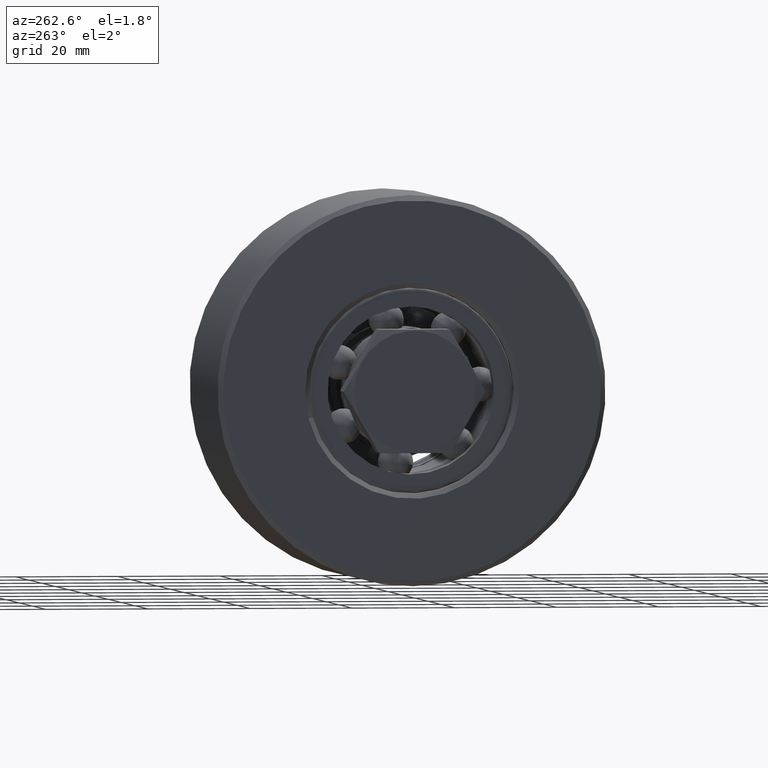
[diagram: clean part render]
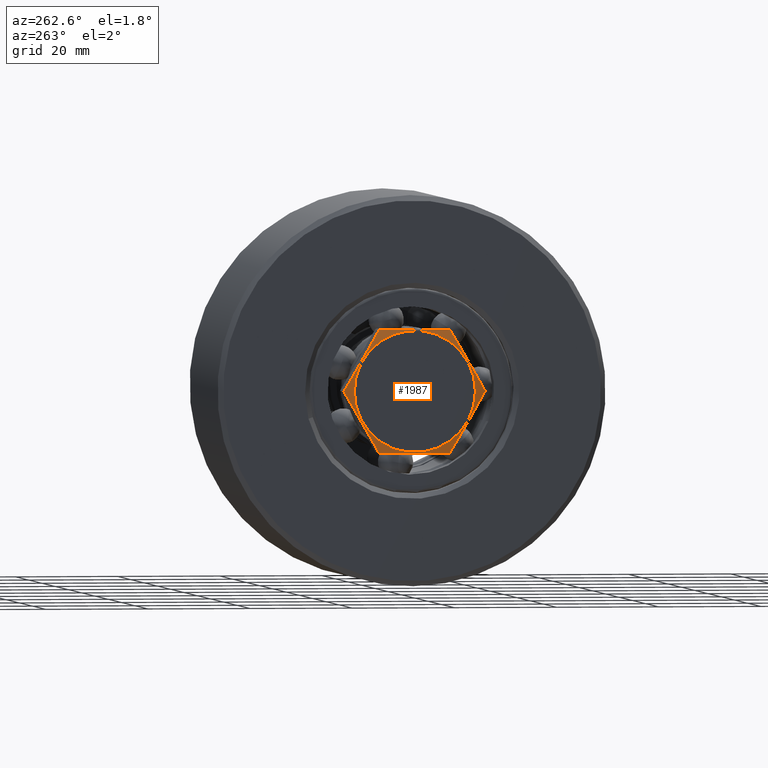
[diagram: same view with one face highlighted and labeled with its STEP entity id]
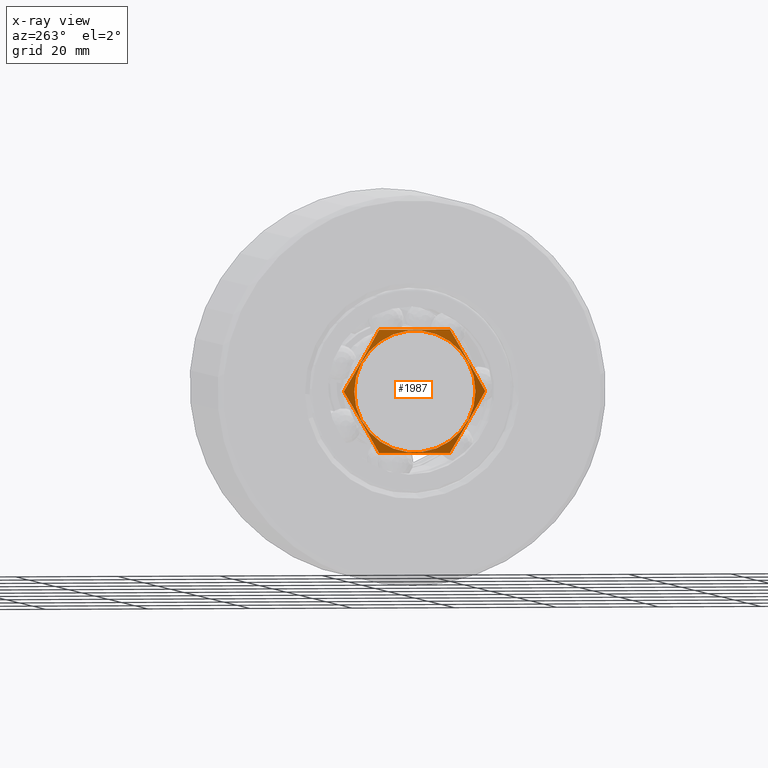
[diagram: x-ray of the same camera — body ghosted, the highlighted face saturated]
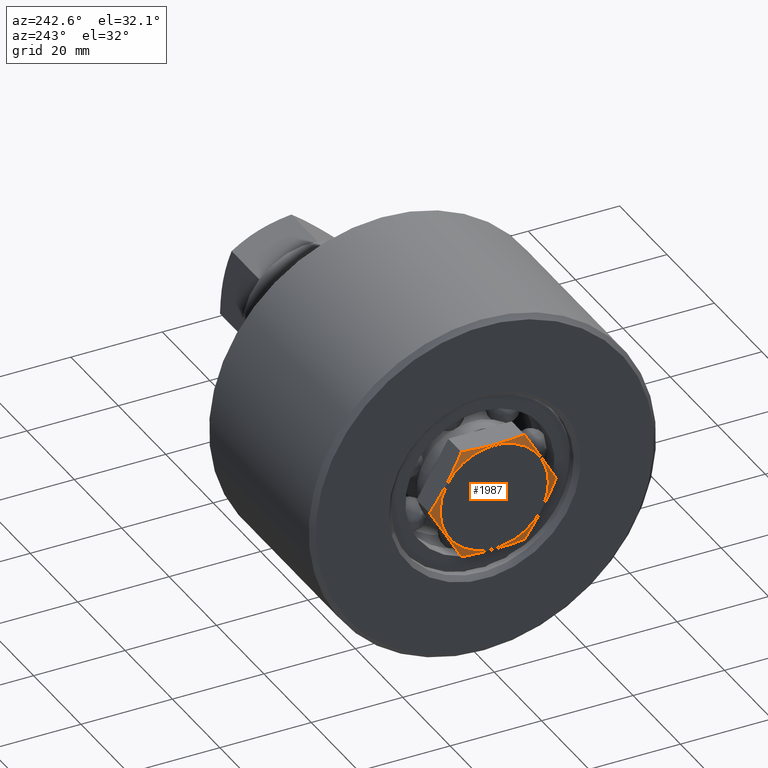
[diagram: same view with one face highlighted and labeled with its STEP entity id]
A machine part, auxiliary view. The second image highlights one B-rep face of the part: STEP entity #1987.
The next image is the same camera in x-ray: the body ghosted, the highlighted face saturated — about 0% of this face is hidden behind the body in this view.
A second angle (auxiliary view) of the same face is appended — the face is thin or edge-on in the first view.
In plain terms, the highlighted conical surface has half-angle 75 deg.
Its self-contained STEP definition (entity closure, byte-faithful):
#190=(
BOUNDED_CURVE()
B_SPLINE_CURVE(2,(#3143,#3144,#3145),.UNSPECIFIED.,.F.,.F.)
B_SPLINE_CURVE_WITH_KNOTS((3,3),(0.,1.38920738919512),.UNSPECIFIED.)
CURVE()
GEOMETRIC_REPRESENTATION_ITEM()
RATIONAL_B_SPLINE_CURVE((1.,1.15470053837925,1.))
REPRESENTATION_ITEM('')
);
#191=(
BOUNDED_CURVE()
B_SPLINE_CURVE(2,(#3150,#3151,#3152),.UNSPECIFIED.,.F.,.F.)
B_SPLINE_CURVE_WITH_KNOTS((3,3),(0.,1.38920738919512),.UNSPECIFIED.)
CURVE()
GEOMETRIC_REPRESENTATION_ITEM()
RATIONAL_B_SPLINE_CURVE((1.,1.15470053837925,1.))
REPRESENTATION_ITEM('')
);
#192=(
BOUNDED_CURVE()
B_SPLINE_CURVE(2,(#3154,#3155,#3156),.UNSPECIFIED.,.F.,.F.)
B_SPLINE_CURVE_WITH_KNOTS((3,3),(0.,1.38920738919512),.UNSPECIFIED.)
CURVE()
GEOMETRIC_REPRESENTATION_ITEM()
RATIONAL_B_SPLINE_CURVE((1.,1.15470053837925,1.))
REPRESENTATION_ITEM('')
);
#193=(
BOUNDED_CURVE()
B_SPLINE_CURVE(2,(#3158,#3159,#3160),.UNSPECIFIED.,.F.,.F.)
B_SPLINE_CURVE_WITH_KNOTS((3,3),(0.,1.38920738919512),.UNSPECIFIED.)
CURVE()
GEOMETRIC_REPRESENTATION_ITEM()
RATIONAL_B_SPLINE_CURVE((1.,1.15470053837925,1.))
REPRESENTATION_ITEM('')
);
#194=(
BOUNDED_CURVE()
B_SPLINE_CURVE(2,(#3162,#3163,#3164),.UNSPECIFIED.,.F.,.F.)
B_SPLINE_CURVE_WITH_KNOTS((3,3),(0.,1.38920738919512),.UNSPECIFIED.)
CURVE()
GEOMETRIC_REPRESENTATION_ITEM()
RATIONAL_B_SPLINE_CURVE((1.,1.15470053837925,1.))
REPRESENTATION_ITEM('')
);
#195=(
BOUNDED_CURVE()
B_SPLINE_CURVE(2,(#3165,#3166,#3167),.UNSPECIFIED.,.F.,.F.)
B_SPLINE_CURVE_WITH_KNOTS((3,3),(0.,1.38920738919512),.UNSPECIFIED.)
CURVE()
GEOMETRIC_REPRESENTATION_ITEM()
RATIONAL_B_SPLINE_CURVE((1.,1.15470053837925,1.))
REPRESENTATION_ITEM('')
);
#295=FACE_OUTER_BOUND('',#410,.T.);
#410=EDGE_LOOP('',(#1359,#1360,#1361,#1362,#1363,#1364,#1365,#1366,#1367));
#558=LINE('',#3147,#632);
#632=VECTOR('',#2547,12.856406460551);
#708=CIRCLE('',#2272,11.856406460551);
#839=VERTEX_POINT('',#3141);
#840=VERTEX_POINT('',#3142);
#841=VERTEX_POINT('',#3146);
#842=VERTEX_POINT('',#3149);
#843=VERTEX_POINT('',#3153);
#844=VERTEX_POINT('',#3157);
#845=VERTEX_POINT('',#3161);
#1051=EDGE_CURVE('',#839,#840,#190,.T.);
#1052=EDGE_CURVE('',#839,#841,#558,.T.);
#1053=EDGE_CURVE('',#841,#841,#708,.T.);
#1054=EDGE_CURVE('',#842,#839,#191,.T.);
#1055=EDGE_CURVE('',#843,#842,#192,.T.);
#1056=EDGE_CURVE('',#844,#843,#193,.T.);
#1057=EDGE_CURVE('',#845,#844,#194,.T.);
#1058=EDGE_CURVE('',#840,#845,#195,.T.);
#1359=ORIENTED_EDGE('',*,*,#1051,.F.);
#1360=ORIENTED_EDGE('',*,*,#1052,.T.);
#1361=ORIENTED_EDGE('',*,*,#1053,.F.);
#1362=ORIENTED_EDGE('',*,*,#1052,.F.);
#1363=ORIENTED_EDGE('',*,*,#1054,.F.);
#1364=ORIENTED_EDGE('',*,*,#1055,.F.);
#1365=ORIENTED_EDGE('',*,*,#1056,.F.);
#1366=ORIENTED_EDGE('',*,*,#1057,.F.);
#1367=ORIENTED_EDGE('',*,*,#1058,.F.);
#1955=CONICAL_SURFACE('',#2271,12.856406460551,1.30899693899575);
#1987=ADVANCED_FACE('',(#295),#1955,.T.);
#2271=AXIS2_PLACEMENT_3D('',#3140,#2545,#2546);
#2272=AXIS2_PLACEMENT_3D('',#3148,#2548,#2549);
#2545=DIRECTION('center_axis',(1.,0.,0.));
#2546=DIRECTION('ref_axis',(0.,1.,0.));
#2547=DIRECTION('',(-0.258819045102521,0.965925826289068,-1.18291797137867E-16));
#2548=DIRECTION('center_axis',(-1.,0.,0.));
#2549=DIRECTION('ref_axis',(0.,1.,0.));
#3140=CARTESIAN_POINT('Origin',(0.267949192431122,0.,0.));
#3141=CARTESIAN_POINT('',(0.535898384862245,-13.856406460551,4.44089209850063E-15));
#3142=CARTESIAN_POINT('',(0.535898384862245,-6.92820323027551,-12.));
#3143=CARTESIAN_POINT('Ctrl Pts',(0.535898384862245,-13.856406460551,2.39315730072354E-15));
#3144=CARTESIAN_POINT('Ctrl Pts',(-0.392304845413264,-10.3923048454133,
-6.));
#3145=CARTESIAN_POINT('Ctrl Pts',(0.535898384862245,-6.92820323027551,-12.));
#3146=CARTESIAN_POINT('',(1.73472347597681E-16,-11.856406460551,1.45199102213038E-15));
#3147=CARTESIAN_POINT('',(0.267949192431122,-12.856406460551,1.57445570204512E-15));
#3148=CARTESIAN_POINT('Origin',(0.,0.,0.));
#3149=CARTESIAN_POINT('',(0.535898384862245,-6.92820323027552,12.));
#3150=CARTESIAN_POINT('Ctrl Pts',(0.535898384862245,-6.92820323027551,12.));
#3151=CARTESIAN_POINT('Ctrl Pts',(-0.392304845413265,-10.3923048454133,
6.));
#3152=CARTESIAN_POINT('Ctrl Pts',(0.535898384862244,-13.856406460551,-2.39315730072354E-15));
#3153=CARTESIAN_POINT('',(0.535898384862245,6.92820323027552,12.));
#3154=CARTESIAN_POINT('Ctrl Pts',(0.535898384862244,6.92820323027551,12.));
#3155=CARTESIAN_POINT('Ctrl Pts',(-0.392304845413264,-3.07635420544314E-15,
12.));
#3156=CARTESIAN_POINT('Ctrl Pts',(0.535898384862245,-6.92820323027552,12.));
#3157=CARTESIAN_POINT('',(0.535898384862245,13.856406460551,0.));
#3158=CARTESIAN_POINT('Ctrl Pts',(0.535898384862245,13.856406460551,3.58973595108532E-15));
#3159=CARTESIAN_POINT('Ctrl Pts',(-0.392304845413264,10.3923048454133,6.00000000000001));
#3160=CARTESIAN_POINT('Ctrl Pts',(0.535898384862245,6.92820323027551,12.));
#3161=CARTESIAN_POINT('',(0.535898384862245,6.92820323027551,-12.));
#3162=CARTESIAN_POINT('Ctrl Pts',(0.535898384862244,6.92820323027551,-12.));
#3163=CARTESIAN_POINT('Ctrl Pts',(-0.392304845413264,10.3923048454133,-6.));
#3164=CARTESIAN_POINT('Ctrl Pts',(0.535898384862245,13.856406460551,0.));
#3165=CARTESIAN_POINT('Ctrl Pts',(0.535898384862245,-6.92820323027551,-12.));
#3166=CARTESIAN_POINT('Ctrl Pts',(-0.392304845413264,0.,-12.));
#3167=CARTESIAN_POINT('Ctrl Pts',(0.535898384862245,6.92820323027551,-12.));